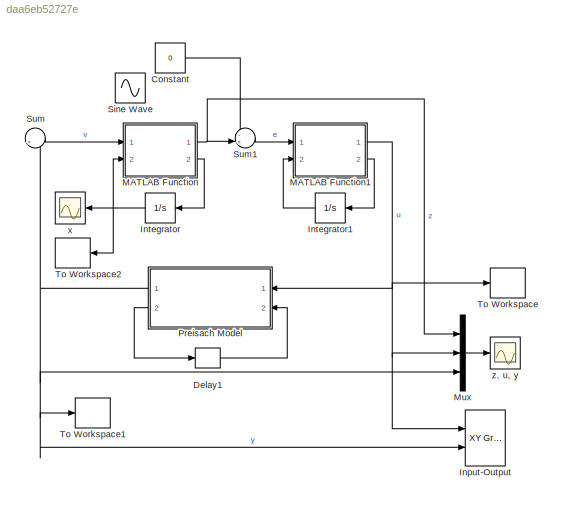
MODEL slx_daa6eb52727e
KIND model
CONFIG AbsTol = auto
CONFIG EnableMultiTasking = off
CONFIG FixedStep = 0.05
CONFIG MaxStep = 0.1
CONFIG MinStep = 0.01
CONFIG RelTol = 1e-3
CONFIG SampleTimeConstraint = Unconstrained
CONFIG Solver = FixedStepAuto
CONFIG SolverName = FixedStepAuto
CONFIG StartTime = 0.0
CONFIG StopTime = simTotalTime
BLOCK [Constant] Constant
  Value = 0
BLOCK [Delay] Delay1
  DelayLength = 1
  InitialCondition = initialRelays
  InputPortMap = u0
  Ports = [1, 1]
BLOCK [Reference] Input-Output  REF=simulink/Sinks/XY Graph
  Ports = [2]
  SourceBlock = simulink/Sinks/XY Graph
  SourceProductBaseCode = SL
  SourceProductName = Simulink
  SourceType = XY scope.
BLOCK [Integrator] Integrator
  InitialCondition = Gx0
  Ports = [1, 1]
BLOCK [Integrator] Integrator1
  InitialCondition = Cx0
  Ports = [1, 1]
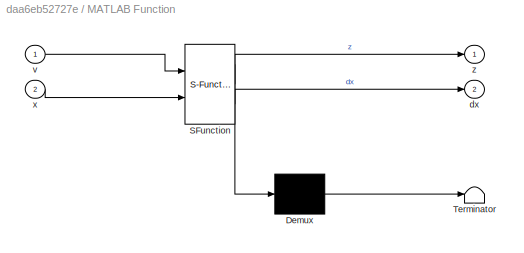
BLOCK [SubSystem] MATLAB Function
  ErrorFcn = Stateflow.Translate.translate
  PermitHierarchicalResolution = ExplicitOnly
  Ports = [2, 2]
  RequestExecContextInheritance = off
  SFBlockType = MATLAB Function
  TreatAsAtomicUnit = on
BLOCK [Demux] MATLAB Function/ Demux 
  Outputs = 1
  Ports = [1, 1]
BLOCK [S-Function] MATLAB Function/ SFunction 
  EnableBusSupport = on
  FunctionName = sf_sfun
  Parameters = GA,GB,GC,GD
  PortCounts = [2 3]
  Ports = [2, 3]
  SFcnIsStateOwnerBlock = off
  SFunctionDeploymentMode = off
  Tag = Stateflow S-Function TAC2019Preisach 1
BLOCK [Terminator] MATLAB Function/ Terminator 
BLOCK [Outport] MATLAB Function/dx
  IconDisplay = Port number
  Port = 2
BLOCK [Inport] MATLAB Function/v
  IconDisplay = Port number
BLOCK [Inport] MATLAB Function/x
  IconDisplay = Port number
  Port = 2
BLOCK [Outport] MATLAB Function/z
  IconDisplay = Port number
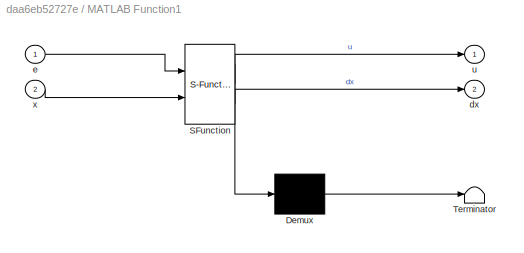
BLOCK [SubSystem] MATLAB Function1
  ErrorFcn = Stateflow.Translate.translate
  PermitHierarchicalResolution = ExplicitOnly
  Ports = [2, 2]
  RequestExecContextInheritance = off
  SFBlockType = MATLAB Function
  TreatAsAtomicUnit = on
BLOCK [Demux] MATLAB Function1/ Demux 
  Outputs = 1
  Ports = [1, 1]
BLOCK [S-Function] MATLAB Function1/ SFunction 
  EnableBusSupport = on
  FunctionName = sf_sfun
  Parameters = CA,CB,CC,CD
  PortCounts = [2 3]
  Ports = [2, 3]
  SFcnIsStateOwnerBlock = off
  SFunctionDeploymentMode = off
  Tag = Stateflow S-Function TAC2019Preisach 3
BLOCK [Terminator] MATLAB Function1/ Terminator 
BLOCK [Outport] MATLAB Function1/dx
  IconDisplay = Port number
  Port = 2
BLOCK [Inport] MATLAB Function1/e
  IconDisplay = Port number
BLOCK [Outport] MATLAB Function1/u
  IconDisplay = Port number
BLOCK [Inport] MATLAB Function1/x
  IconDisplay = Port number
  Port = 2
BLOCK [Mux] Mux
  DisplayOption = bar
  Inputs = 3
  Ports = [3, 1]
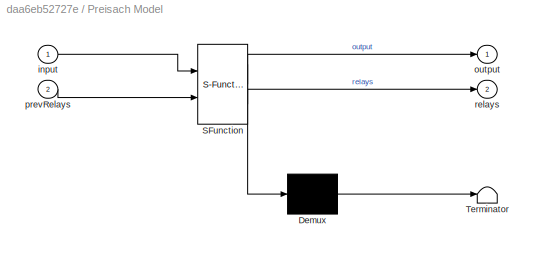
BLOCK [SubSystem] Preisach Model
  ErrorFcn = Stateflow.Translate.translate
  PermitHierarchicalResolution = ExplicitOnly
  Ports = [2, 2]
  RequestExecContextInheritance = off
  SFBlockType = MATLAB Function
  TreatAsAtomicUnit = on
BLOCK [Demux] Preisach Model/ Demux 
  Outputs = 1
  Ports = [1, 1]
BLOCK [S-Function] Preisach Model/ SFunction 
  EnableBusSupport = on
  FunctionName = sf_sfun
  Parameters = gridSize,inputGrid,offset,relayArea,relayLength,relayOffVal,relayOnVal,weightFunc
  PortCounts = [2 3]
  Ports = [2, 3]
  SFcnIsStateOwnerBlock = off
  SFunctionDeploymentMode = off
  Tag = Stateflow S-Function TAC2019Preisach 2
BLOCK [Terminator] Preisach Model/ Terminator 
BLOCK [Inport] Preisach Model/input
  IconDisplay = Port number
BLOCK [Outport] Preisach Model/output
  IconDisplay = Port number
BLOCK [Inport] Preisach Model/prevRelays
  IconDisplay = Port number
  Port = 2
BLOCK [Outport] Preisach Model/relays
  IconDisplay = Port number
  Port = 2
BLOCK [Sin] Sine Wave
  Amplitude = 0.8
  Frequency = 2*pi*(1/20)
  Ports = [0, 1]
  SampleTime = 0
BLOCK [Sum] Sum
  IconShape = round
  InputSameDT = off
  Inputs = |+-
  OutDataTypeStr = Inherit: Inherit via internal rule
  Ports = [2, 1]
  SaturateOnIntegerOverflow = off
BLOCK [Sum] Sum1
  IconShape = round
  InputSameDT = off
  Inputs = -+|
  OutDataTypeStr = Inherit: Inherit via internal rule
  Ports = [2, 1]
  SaturateOnIntegerOverflow = off
BLOCK [ToWorkspace] To Workspace
  FixptAsFi = on
  MaxDataPoints = inf
  Ports = [1]
  SampleTime = -1
  Save2DSignal = 3-D array (concatenate along third dimension)
  SaveFormat = Timeseries
  VariableName = Phiu
BLOCK [ToWorkspace] To Workspace1
  FixptAsFi = on
  MaxDataPoints = inf
  Ports = [1]
  SampleTime = -1
  Save2DSignal = 3-D array (concatenate along third dimension)
  SaveFormat = Timeseries
  VariableName = Phiy
BLOCK [ToWorkspace] To Workspace2
  FixptAsFi = on
  MaxDataPoints = inf
  Ports = [1]
  SampleTime = -1
  Save2DSignal = 3-D array (concatenate along third dimension)
  SaveFormat = Timeseries
  VariableName = xt
BLOCK [Scope] x
  Floating = off
  NumInputPorts = 1
  Ports = [1]
  ScopeSpecificationString = Simulink.scopes.TimeScopeBlockCfg('CurrentConfiguration', extmgr.ConfigurationSet(extmgr.Configuration('Core','General UI',true),extmgr.Configuration('Core','Source UI',true),extmgr.Configuration('Sources','WiredSimulink',true,'DataLoggingVariableName','ScopeData1'),extmgr.Configuration('Visuals','Time Domain',true,'SerializedDisplays',{struct('MinYLimReal','-1.35757','MaxYLimReal','3.96599','YLab...<+1511ch>
BLOCK [Scope] z, u, y
  Floating = off
  NumInputPorts = 1
  Ports = [1]
  ScopeSpecificationString = Simulink.scopes.TimeScopeBlockCfg('CurrentConfiguration', extmgr.ConfigurationSet(extmgr.Configuration('Core','General UI',true),extmgr.Configuration('Core','Source UI',true),extmgr.Configuration('Sources','WiredSimulink',true,'DataLoggingVariableName','ScopeData1'),extmgr.Configuration('Visuals','Time Domain',true,'SerializedDisplays',{struct('MinYLimReal','-1.01399','MaxYLimReal','0.57575','YLab...<+1524ch>
LINE Constant:1 -> Sum1:1
LINE Delay1:1 -> Preisach Model:2
LINE Integrator1:1 -> MATLAB Function1:2
NET Integrator:1 -> MATLAB Function:2, To Workspace2:1, x:1
NET MATLAB Function1:1 -> Input-Output:1, Mux:2, Preisach Model:1, To Workspace:1
LINE MATLAB Function1:2 -> Integrator1:1
NET MATLAB Function:1 -> Mux:1, Sum1:2
LINE MATLAB Function:2 -> Integrator:1
LINE Mux:1 -> z, u, y:1
NET Preisach Model:1 -> Input-Output:2, Mux:3, Sum:2, To Workspace1:1
LINE Preisach Model:2 -> Delay1:1
LINE Sum1:1 -> MATLAB Function1:1
LINE Sum:1 -> MATLAB Function:1
note: NET lines group one-source signal fan-out (src -> all destinations, sorted); 1:1 wires keep LINE
CHART MATLAB Function states=1 transitions=1
  STATE_LABEL 'eML_blk_kernel()'
  STATE_LABEL 'SCRIPT:\nfunction [z,dx] = fcn(v, x, GA, GB, GC, GD)\n\ndx = GA*x + GB*v;\nz = GC*x + GD*v;\n'
CHART Preisach Model states=1 transitions=1
  STATE_LABEL 'eML_blk_kernel()'
  STATE_LABEL 'SCRIPT:\nfunction [output, relays] = fcn(input, prevRelays, ...\n    weightFunc, offset, relayOffVal, relayOnVal, gridSize, inputGrid, relayLength, relayArea)\n\n%     output = offset;\n%     relays = prevRelays;\n%     for i=1:gridSize\n%         ii = gridSize-i+1; %index inversion for rows\n%         for j=1:i\n%             if( input >= inputGrid(i) && relays(ii,j) ~= relayOnVal )\n%                 rela...<+1693ch>'
CHART MATLAB Function1 states=1 transitions=1
  STATE_LABEL 'eML_blk_kernel()'
  STATE_LABEL 'SCRIPT:\nfunction [u, dx] = fcn(e, x, CA, CB, CC, CD)\n\ndx = CA*x + CB*e;\nu = CC*x + CD*e;\n'
